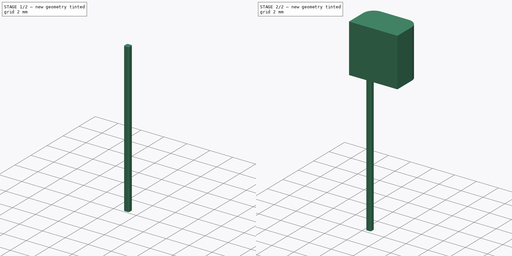
[diagram: build sequence overview — one tinted view per stage of 2, left to right]
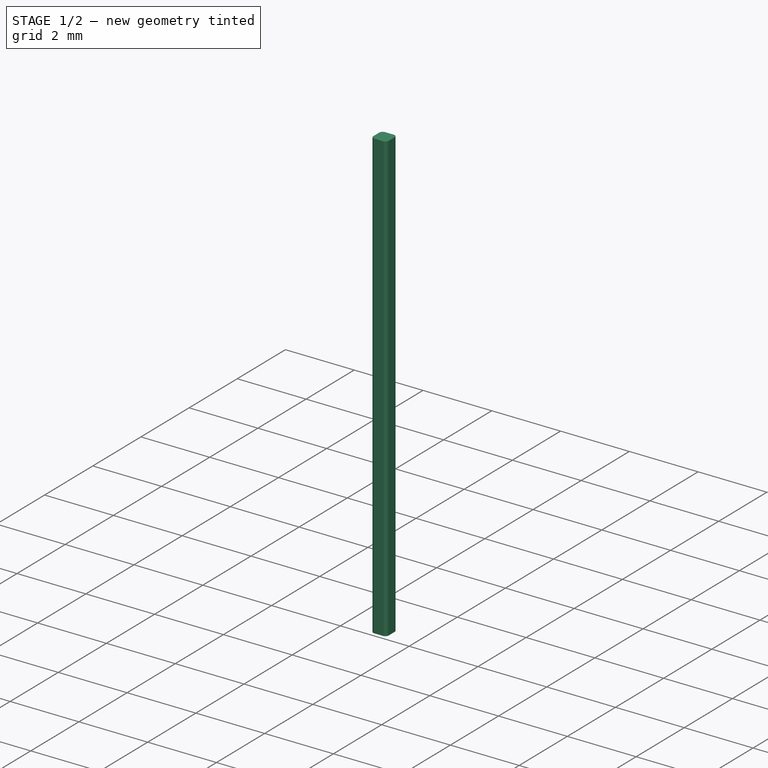
[diagram: stage 1 of 2 — iso view after this stage's code; geometry added in this stage tinted green]
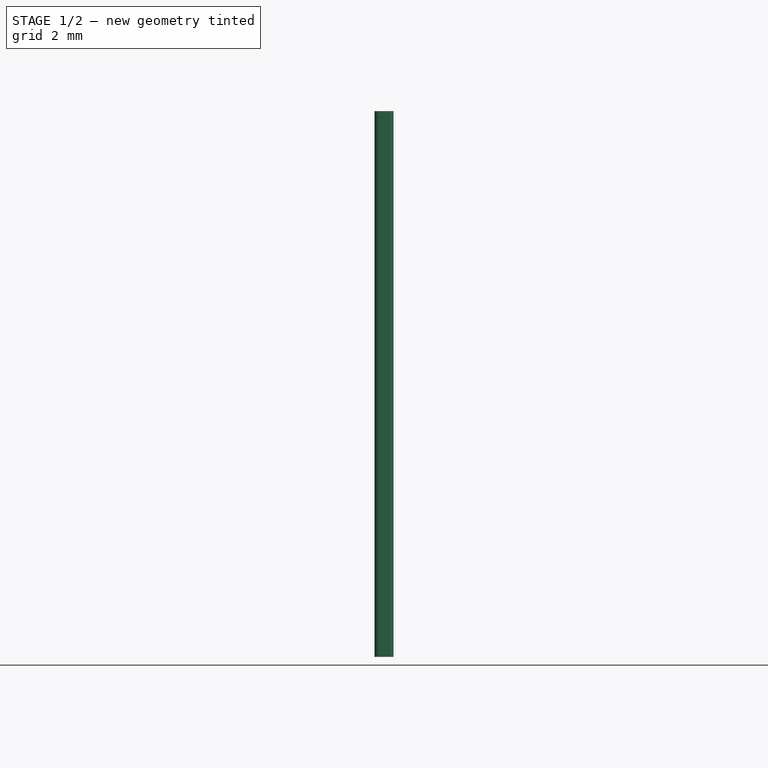
[diagram: stage 1 of 2 — front view after this stage's code; geometry added in this stage tinted green]
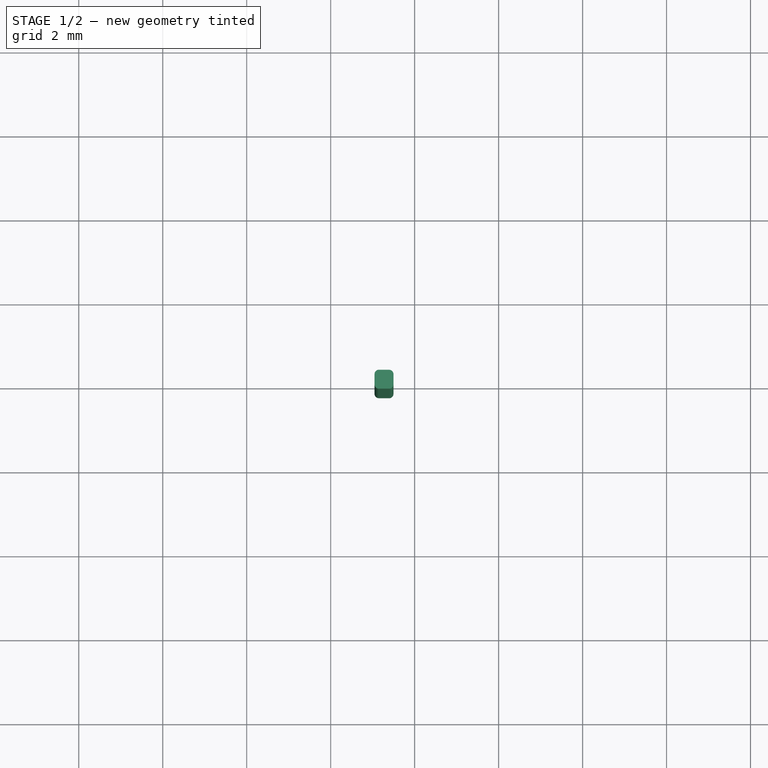
[diagram: stage 1 of 2 — top view after this stage's code; geometry added in this stage tinted green]
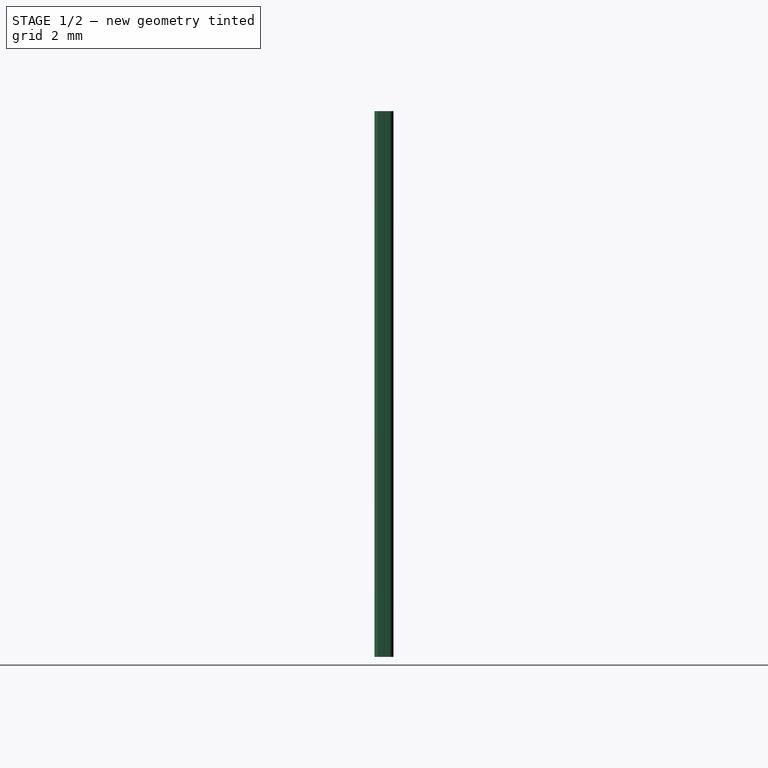
[diagram: stage 1 of 2 — right view after this stage's code; geometry added in this stage tinted green]
FCSTD DOCUMENT  (FreeCAD 0.20R29603 (Git))
Label: TO-92 eline
License: All rights reserved
LicenseURL: http://en.wikipedia.org/wiki/All_rights_reserved
objects: Part::Feature×4, Sketcher::SketchObject×2, PartDesign::Pad×2, PartDesign::Body×2, Part::FeaturePython×2
note: 14 computed .brp shape members not serialized (recipe doc carries the construction recipe); baked Part::Feature solids carry a one-line shape summary decoded from their .brp

FEATURE [PartDesign::Body] Body
  Group = -> [Sketch,Pad]
  Origin = -> Origin
  Tip = -> Pad
FEATURE [Sketcher::SketchObject] Sketch001
  FullyConstrained = true
  MapMode = 5
  Support = -> [XY_Plane001]
  sketch-geometry (8):
    g0: LineSegment StartX=-0.125 StartY=0.225 StartZ=0 EndX=0.125 EndY=0.225 EndZ=0
    g1: LineSegment StartX=0.225 StartY=0.125 StartZ=0 EndX=0.225 EndY=-0.125 EndZ=0
    g2: LineSegment StartX=0.125 StartY=-0.225 StartZ=0 EndX=-0.125 EndY=-0.225 EndZ=0
    g3: LineSegment StartX=-0.225 StartY=-0.125 StartZ=0 EndX=-0.225 EndY=0.125 EndZ=0
    g4: ArcOfCircle CenterX=-0.125 CenterY=0.125 CenterZ=0 NormalX=0 NormalY=0 NormalZ=1 AngleXU=0 Radius=0.1 StartAngle=1.5708 EndAngle=3.14159
    g5: ArcOfCircle CenterX=0.125 CenterY=0.125 CenterZ=0 NormalX=0 NormalY=0 NormalZ=1 AngleXU=0 Radius=0.1 StartAngle=0 EndAngle=1.5708
    g6: ArcOfCircle CenterX=0.125 CenterY=-0.125 CenterZ=0 NormalX=0 NormalY=0 NormalZ=1 AngleXU=0 Radius=0.1 StartAngle=4.71239 EndAngle=6.28319
    g7: ArcOfCircle CenterX=-0.125 CenterY=-0.125 CenterZ=0 NormalX=0 NormalY=0 NormalZ=1 AngleXU=0 Radius=0.1 StartAngle=3.14159 EndAngle=4.71239
  constraints (18):
    c: Vertical(g3)
    c: Tangent(g0,g4) = 1.5708
    c: Tangent(g3,g4) = 1.5708
    c: Tangent(g0,g5) = 1.5708
    c: Tangent(g1,g5) = 1.5708
    c: Tangent(g1,g6) = 1.5708
    c: Tangent(g2,g6) = 1.5708
    c: Tangent(g2,g7) = 1.5708
    c: Tangent(g3,g7) = 1.5708
    c: Equal(g4,g7)
    c: Equal(g7,g6)
    c: Equal(g6,g5)
    c: Horizontal(g0)
    c: DistanceY(g2,g0) = 0.45
    c: Equal(g1,g0)
    c: Symmetric(g2,g2,g-2)
    c: Symmetric(g1,g1,g-1)
    c: DistanceY(g1,g1) = 0.25
FEATURE [PartDesign::Pad] Pad001
  Direction = (0,0,1)
  Length = 13
  Length2 = 10
  Profile = -> Sketch001
  ReferenceAxis = -> Sketch001 [N_Axis]
  Reversed = true
  Type = 0
FEATURE [PartDesign::Body] Body001
  Group = -> [Sketch001,Pad001]
  Origin = -> Origin001
  Tip = -> Pad001
FEATURE [Part::FeaturePython] Clone  label="Pad002"  # Draft clone (typed FeaturePython)
  AttacherType = Attacher::AttachEngine3D
  Fuse = false
  Objects = -> [Pad001]
  Placement = pos=(1.27,0,0) rot=(0,0,1;0rad)
  Scale = (1,1,1)
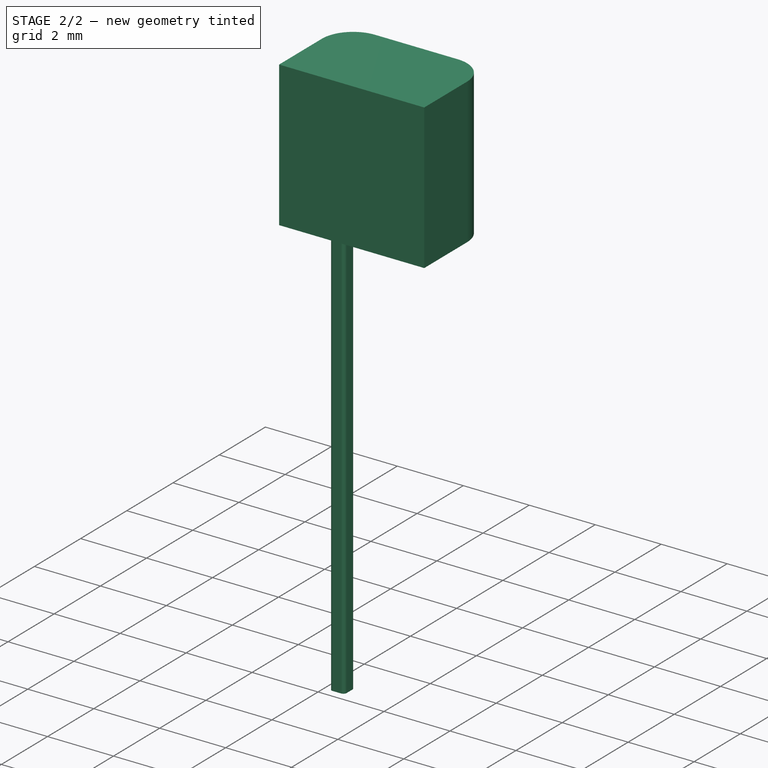
[diagram: stage 2 of 2 — iso view after this stage's code; geometry added in this stage tinted green]
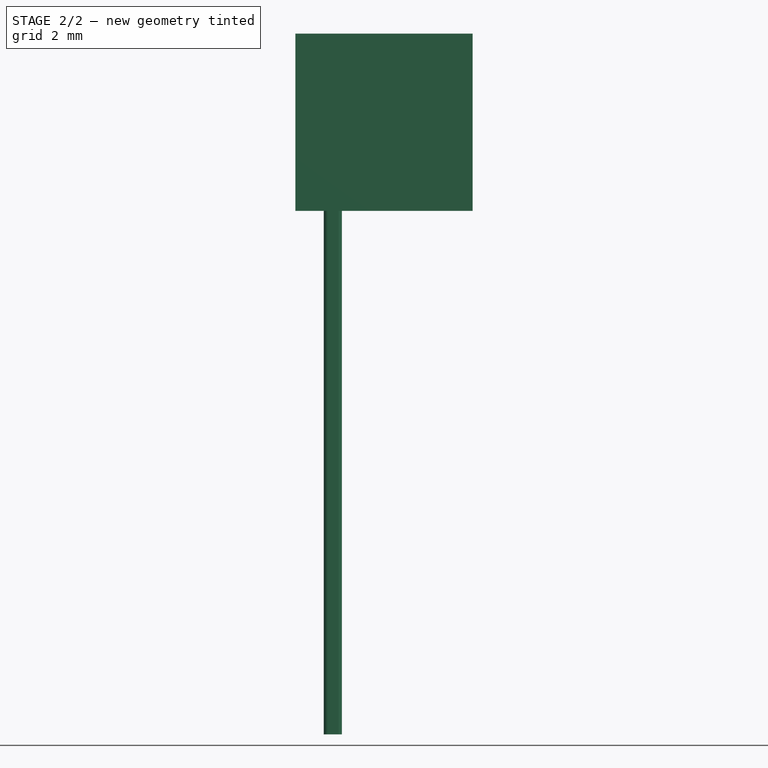
[diagram: stage 2 of 2 — front view after this stage's code; geometry added in this stage tinted green]
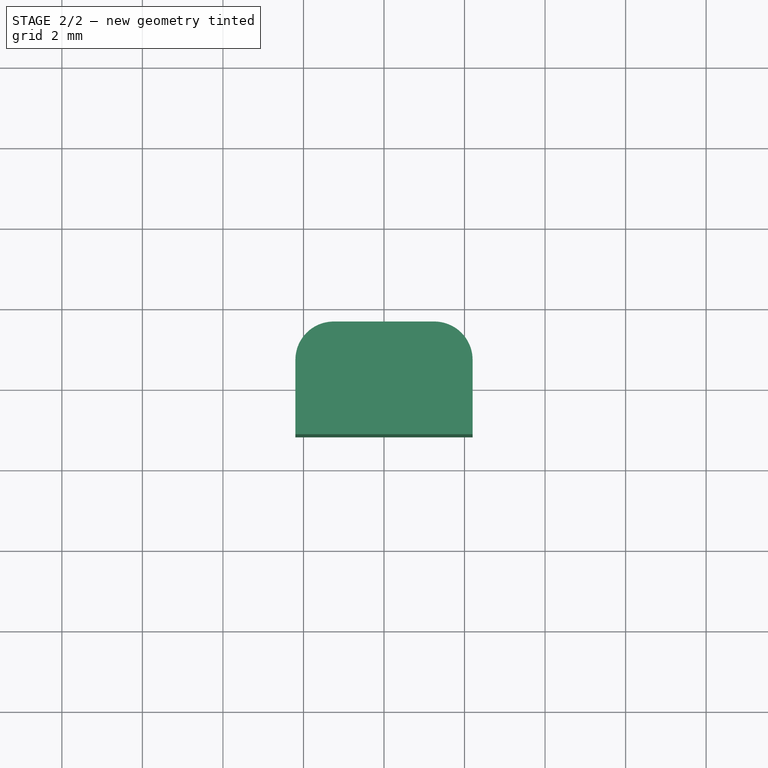
[diagram: stage 2 of 2 — top view after this stage's code; geometry added in this stage tinted green]
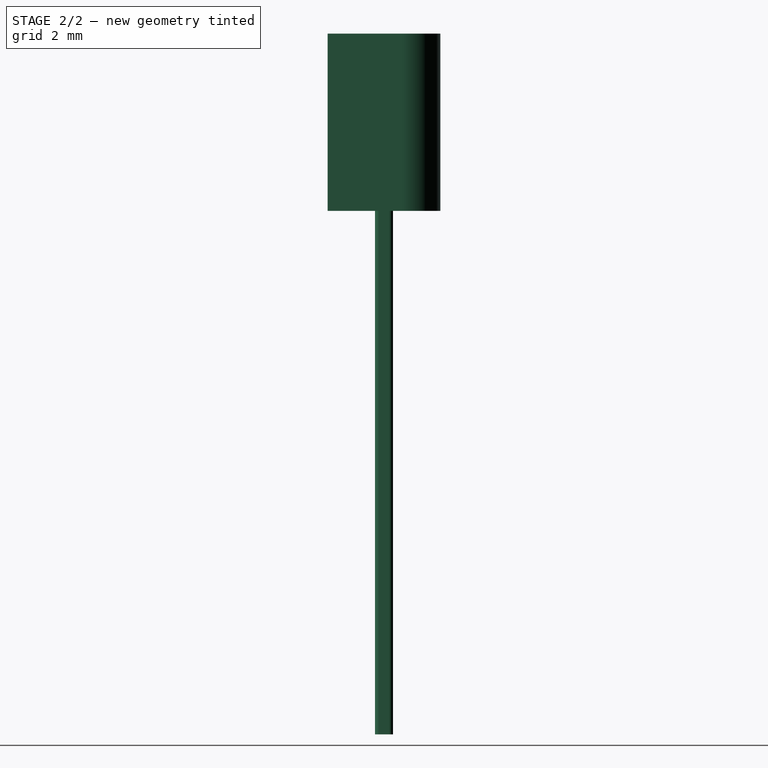
[diagram: stage 2 of 2 — right view after this stage's code; geometry added in this stage tinted green]
FEATURE [Sketcher::SketchObject] Sketch
  FullyConstrained = true
  MapMode = 5
  Support = -> [XY_Plane]
  sketch-geometry (7):
    g0: LineSegment StartX=-2.2 StartY=-1.4 StartZ=0 EndX=2.2 EndY=-1.4 EndZ=0
    g1: LineSegment StartX=2.2 StartY=-1.4 StartZ=0 EndX=2.2 EndY=0.45 EndZ=0
    g2: LineSegment StartX=1.25 StartY=1.4 StartZ=0 EndX=-1.25 EndY=1.4 EndZ=0
    g3: LineSegment StartX=-2.2 StartY=0.45 StartZ=0 EndX=-2.2 EndY=-1.4 EndZ=0
    g4: ArcOfCircle CenterX=-1.25 CenterY=0.45 CenterZ=0 NormalX=0 NormalY=0 NormalZ=1 AngleXU=0 Radius=0.95 StartAngle=1.5708 EndAngle=3.14159
    g5: ArcOfCircle CenterX=1.25 CenterY=0.45 CenterZ=0 NormalX=0 NormalY=0 NormalZ=1 AngleXU=0 Radius=0.95 StartAngle=6.451e-13 EndAngle=1.5708
    g6: GeomPoint X=1.25 Y=-1.4 Z=0
  constraints (16):
    c: Coincident(g0,g1)
    c: Coincident(g3,g0)
    c: Vertical(g3)
    c: DistanceX(g0,g0) = 4.4
    c: Tangent(g2,g4) = -1.5708
    c: Tangent(g3,g4) = -1.5708
    c: Tangent(g1,g5) = -1.5708
    c: Tangent(g2,g5) = -1.5708
    c: Horizontal(g2)
    c: Vertical(g1)
    c: Equal(g4,g5)
    c: PointOnObject(g6,g0)
    c: DistanceY(g6,g2) = 2.8
    c: Symmetric(g0,g0,g-2)
    c: Symmetric(g2,g6,g-1)
    c: DistanceX(g2,g2) = 2.5
FEATURE [PartDesign::Pad] Pad
  Direction = (0,0,1)
  Length = 4.4
  Length2 = 10
  Profile = -> Sketch
  ReferenceAxis = -> Sketch [N_Axis]
  Type = 0
FEATURE [Part::FeaturePython] Clone001  label="Pad003"  # Draft clone (typed FeaturePython)
  AttacherType = Attacher::AttachEngine3D
  Fuse = false
  Objects = -> [Clone]
  Placement = pos=(-1.27,0,0) rot=(0,0,1;0rad)
  Scale = (1,1,1)
FEATURE [Part::Feature] Body002  label="Component"
  shape: bbox 4.4 x 2.8 x 4.4 mm, 8 faces (baked)
FEATURE [Part::Feature] Body001001  label="Leg1"
  shape: bbox 0.45 x 0.45 x 13 mm, 10 faces (baked)
FEATURE [Part::Feature] Clone002  label="Leg2"
  Placement = pos=(1.27,0,0) rot=(0,0,1;0rad)
  shape: bbox 0.45 x 0.45 x 13 mm, 10 faces (baked)
FEATURE [Part::Feature] Clone001001  label="Leg3"
  Placement = pos=(-1.27,0,0) rot=(0,0,1;0rad)
  shape: bbox 0.45 x 0.45 x 13 mm, 10 faces (baked)
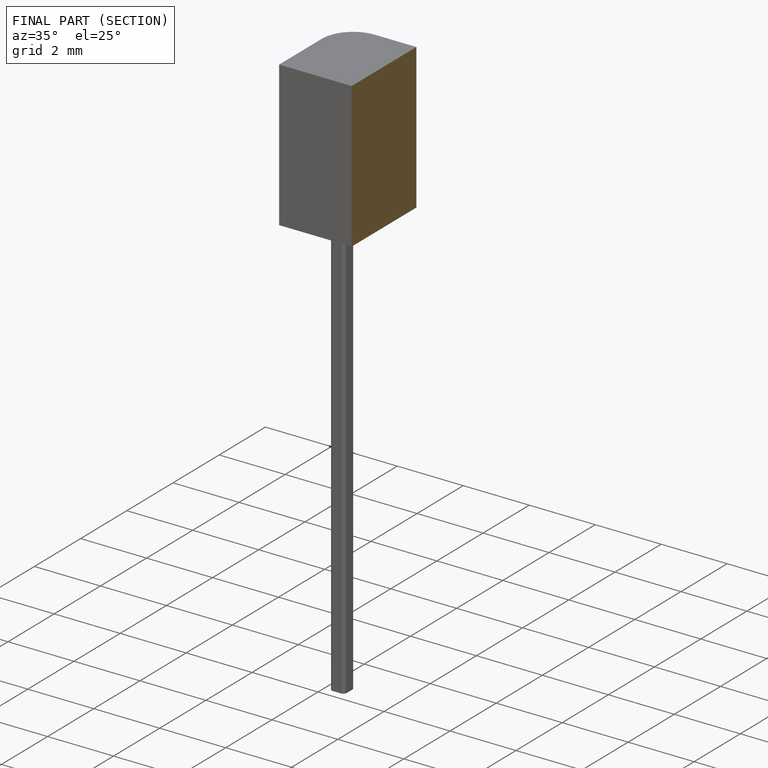
[diagram: finished part — half-section view (interior)]
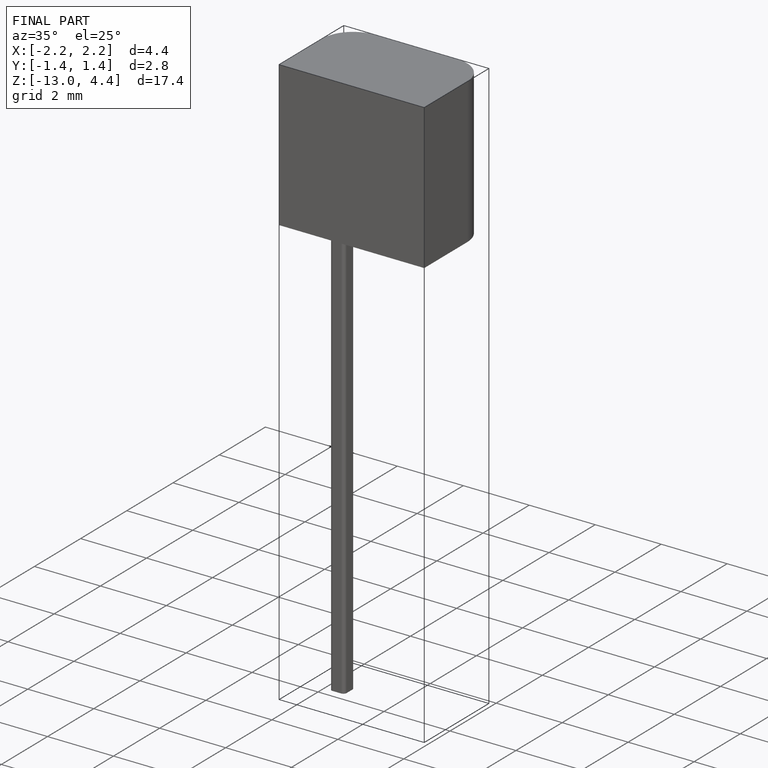
[diagram: finished part — iso view with bounding-box wireframe]
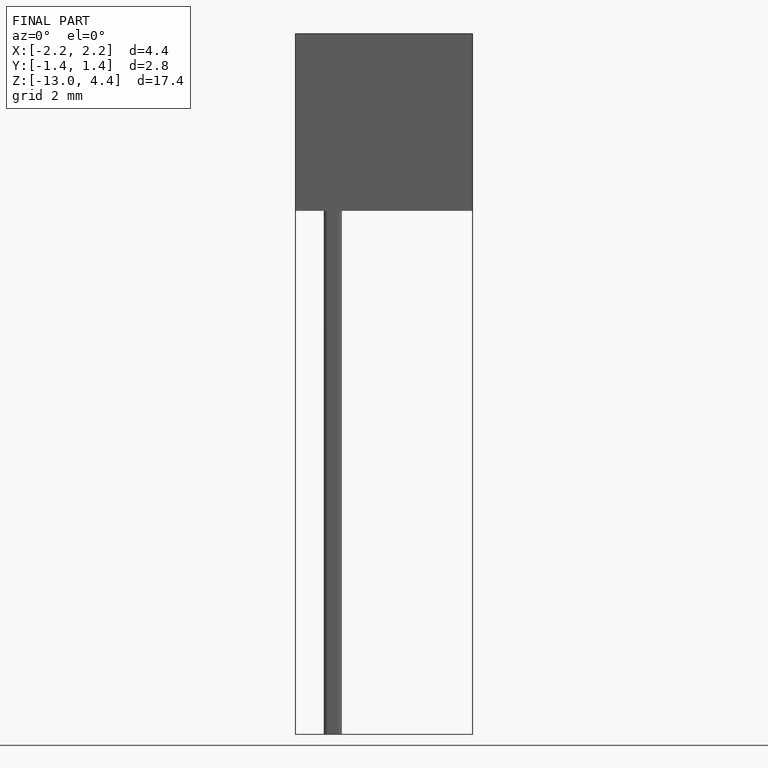
[diagram: finished part — front view with bounding-box wireframe]
